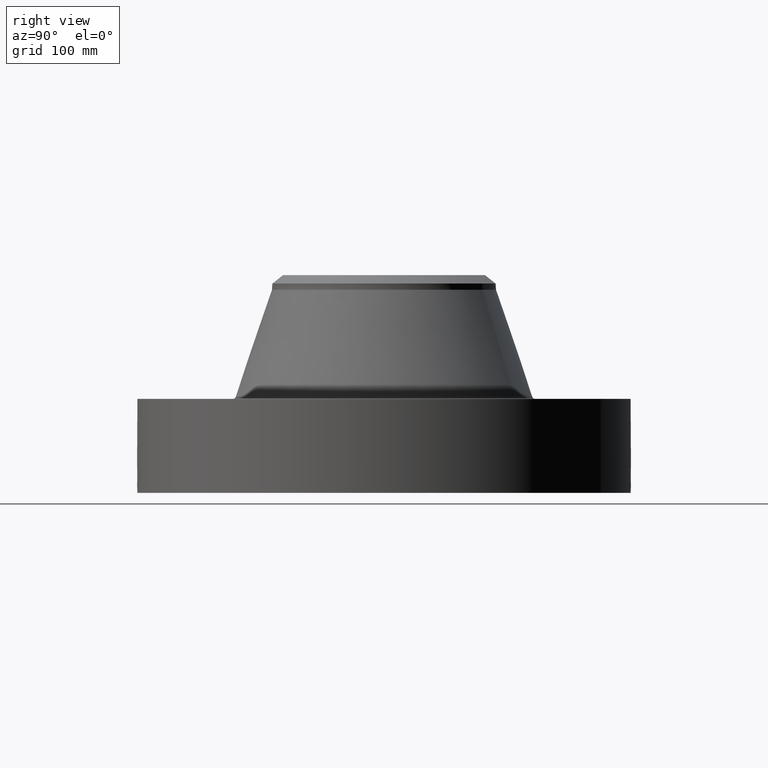
[diagram: clean part render]
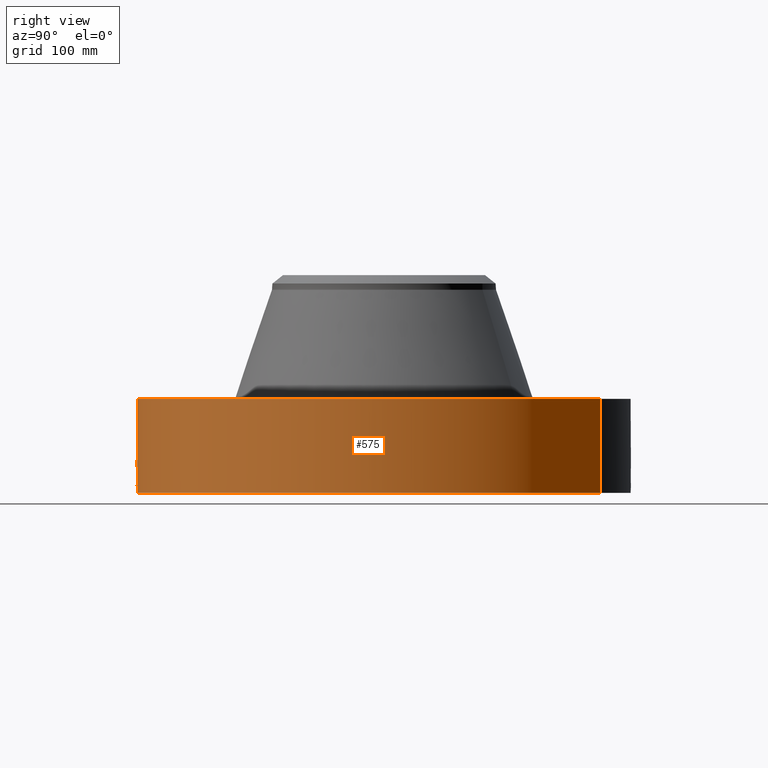
[diagram: same view with one face highlighted and labeled with its STEP entity id]
A machine part, right view. The second image highlights one B-rep face of the part: STEP entity #575.
In plain terms, the highlighted cylindrical surface (partial cylindrical patch) has radius 241.3 mm, axis along (0, 0, -1).
Its self-contained STEP definition (entity closure, byte-faithful):
#38=AXIS2_PLACEMENT_3D('Cylinder Axis2P3D',#35,#36,#37) ;
#169=AXIS2_PLACEMENT_3D('Circle Axis2P3D',#167,#168,$) ;
#479=AXIS2_PLACEMENT_3D('Circle Axis2P3D',#477,#478,$) ;
#35=CARTESIAN_POINT('Axis2P3D Location',(0.,0.,4.44000000002)) ;
#44=CARTESIAN_POINT('Vertex',(-4.55454261676,-8.33703433799,0.250000000001)) ;
#46=CARTESIAN_POINT('Vertex',(4.55454261676,8.33703433799,0.250000000001)) ;
#49=CARTESIAN_POINT('Line Origine',(-4.55454261676,-8.33703433799,2.06000000001)) ;
#53=CARTESIAN_POINT('Vertex',(-4.55454261676,-8.33703433799,3.87000000002)) ;
#60=CARTESIAN_POINT('Vertex',(4.55454261676,8.33703433799,3.87000000002)) ;
#63=CARTESIAN_POINT('Line Origine',(4.55454261676,8.33703433799,2.06000000001)) ;
#167=CARTESIAN_POINT('Axis2P3D Location',(0.,0.,0.250000000001)) ;
#477=CARTESIAN_POINT('Axis2P3D Location',(0.,0.,3.87000000002)) ;
#489=CARTESIAN_POINT('Control Point',(0.0575325675486,-9.49982578811,1.2894086259)) ;
#490=CARTESIAN_POINT('Control Point',(0.0387617029177,-9.49993946767,1.2925030616)) ;
#491=CARTESIAN_POINT('Control Point',(0.0197405343339,-9.49999853895,1.2940799501)) ;
#492=CARTESIAN_POINT('Control Point',(0.000716129650442,-9.49999997305,1.29411849914)) ;
#493=CARTESIAN_POINT('Vertex',(0.0575195611824,-9.49982611812,1.28941105279)) ;
#495=CARTESIAN_POINT('Vertex',(0.000716015010135,-9.49999997305,1.29411850959)) ;
#499=CARTESIAN_POINT('Control Point',(0.0575194650207,-9.49982586745,1.28941049641)) ;
#500=CARTESIAN_POINT('Control Point',(0.0971263632609,-9.49958605594,1.28465850568)) ;
#501=CARTESIAN_POINT('Control Point',(0.136002646621,-9.49909360353,1.27268550158)) ;
#502=CARTESIAN_POINT('Control Point',(0.171718061243,-9.49844792101,1.25435913128)) ;
#503=CARTESIAN_POINT('Vertex',(0.171718061243,-9.49844792101,1.25435913128)) ;
#507=CARTESIAN_POINT('Control Point',(0.0304002735868,-9.49995135904,0.531143633136)) ;
#508=CARTESIAN_POINT('Control Point',(0.0867716236776,-9.49977096817,0.538305394628)) ;
#509=CARTESIAN_POINT('Control Point',(0.141553163719,-9.49917753609,0.555914995272)) ;
#510=CARTESIAN_POINT('Control Point',(0.192025537177,-9.49822518869,0.583478302498)) ;
#511=CARTESIAN_POINT('Control Point',(0.265325114606,-9.49641279305,0.642895462662)) ;
#512=CARTESIAN_POINT('Control Point',(0.317440529121,-9.49472459473,0.719316163453)) ;
#513=CARTESIAN_POINT('Control Point',(0.334530416911,-9.49412332696,0.75198642609)) ;
#514=CARTESIAN_POINT('Control Point',(0.368476749451,-9.4928757749,0.84022282127)) ;
#515=CARTESIAN_POINT('Control Point',(0.375526403587,-9.49256610225,0.934455389976)) ;
#516=CARTESIAN_POINT('Control Point',(0.369385992389,-9.49282227648,0.991999991491)) ;
#517=CARTESIAN_POINT('Control Point',(0.339906533032,-9.49399493766,1.09112721561)) ;
#518=CARTESIAN_POINT('Control Point',(0.2802853053,-9.49592560805,1.17427142741)) ;
#519=CARTESIAN_POINT('Control Point',(0.248256653886,-9.496854785,1.206906435)) ;
#520=CARTESIAN_POINT('Control Point',(0.211604005711,-9.49772684141,1.23389277069)) ;
#521=CARTESIAN_POINT('Control Point',(0.171718061243,-9.49844792101,1.25435913128)) ;
#522=CARTESIAN_POINT('Vertex',(0.0304002735868,-9.49995135904,0.531143633136)) ;
#526=CARTESIAN_POINT('Control Point',(0.0304002735868,-9.49995135904,0.531143633136)) ;
#527=CARTESIAN_POINT('Control Point',(0.0202611729211,-9.49998380462,0.53086805011)) ;
#528=CARTESIAN_POINT('Control Point',(0.0101166074945,-9.50000000294,0.530945220321)) ;
#529=CARTESIAN_POINT('Control Point',(-2.72878353046E-006,-9.50000000004,0.531374667805)) ;
#530=CARTESIAN_POINT('Vertex',(-2.7287835396E-006,-9.50000000004,0.531374667805)) ;
#534=CARTESIAN_POINT('Control Point',(-0.193159967405,-9.49803607214,0.586433233683)) ;
#535=CARTESIAN_POINT('Control Point',(-0.149212423464,-9.49892982598,0.56146705998)) ;
#536=CARTESIAN_POINT('Control Point',(-0.10115845212,-9.49963677984,0.543581165944)) ;
#537=CARTESIAN_POINT('Control Point',(-0.0508206519921,-9.49999998544,0.533531295689)) ;
#538=CARTESIAN_POINT('Control Point',(-2.72878354731E-006,-9.50000000004,0.531374667805)) ;
#539=CARTESIAN_POINT('Vertex',(-0.193159967405,-9.49803607214,0.586433233683)) ;
#543=CARTESIAN_POINT('Control Point',(-0.193159967405,-9.49803607214,0.586433233683)) ;
#544=CARTESIAN_POINT('Control Point',(-0.222119006552,-9.49744713702,0.602884582391)) ;
#545=CARTESIAN_POINT('Control Point',(-0.249411383308,-9.49678168254,0.622217405796)) ;
#546=CARTESIAN_POINT('Control Point',(-0.2746322927,-9.49607319595,0.644255702053)) ;
#547=CARTESIAN_POINT('Control Point',(-0.341385873229,-9.49399594884,0.716105581251)) ;
#548=CARTESIAN_POINT('Control Point',(-0.383874883507,-9.49227878282,0.80590194253)) ;
#549=CARTESIAN_POINT('Control Point',(-0.398800769094,-9.49161188678,0.87035135955)) ;
#550=CARTESIAN_POINT('Control Point',(-0.399486240275,-9.49162271031,0.98472535134)) ;
#551=CARTESIAN_POINT('Control Point',(-0.35925407244,-9.49323070792,1.08947767762)) ;
#552=CARTESIAN_POINT('Control Point',(-0.334931992906,-9.49415713767,1.13095983017)) ;
#553=CARTESIAN_POINT('Control Point',(-0.266159836546,-9.49647544685,1.2144568112)) ;
#554=CARTESIAN_POINT('Control Point',(-0.173480293456,-9.49864536547,1.26890997347)) ;
#555=CARTESIAN_POINT('Control Point',(-0.116677432538,-9.49955881178,1.28863410109)) ;
#556=CARTESIAN_POINT('Control Point',(-0.0579003419848,-9.50000015767,1.29699293844)) ;
#557=CARTESIAN_POINT('Control Point',(2.5857935542E-005,-9.5,1.29415298432)) ;
#558=CARTESIAN_POINT('Vertex',(2.5857935536E-005,-9.5,1.29415298432)) ;
#562=CARTESIAN_POINT('Control Point',(0.000716015000061,-9.49999997305,1.29411850958)) ;
#563=CARTESIAN_POINT('Control Point',(0.00037096058774,-9.49999999906,1.29413606495)) ;
#564=CARTESIAN_POINT('Control Point',(2.58579411811E-005,-9.5,1.29415298432)) ;
#36=DIRECTION('Axis2P3D Direction',(0.,0.,-0.0393700787402)) ;
#37=DIRECTION('Axis2P3D XDirection',(0.0188750212049,0.0345504945626,0.)) ;
#50=DIRECTION('Vector Direction',(0.,0.,-0.0393700787402)) ;
#64=DIRECTION('Vector Direction',(0.,0.,-0.0393700787402)) ;
#168=DIRECTION('Axis2P3D Direction',(0.,0.,-0.0393700787402)) ;
#478=DIRECTION('Axis2P3D Direction',(0.,0.,-0.0393700787402)) ;
#51=VECTOR('Line Direction',#50,0.0393700787402) ;
#65=VECTOR('Line Direction',#64,0.0393700787402) ;
#483=ORIENTED_EDGE('',*,*,#171,.F.) ;
#484=ORIENTED_EDGE('',*,*,#67,.T.) ;
#485=ORIENTED_EDGE('',*,*,#481,.T.) ;
#486=ORIENTED_EDGE('',*,*,#55,.F.) ;
#567=ORIENTED_EDGE('',*,*,#497,.F.) ;
#568=ORIENTED_EDGE('',*,*,#505,.T.) ;
#569=ORIENTED_EDGE('',*,*,#524,.F.) ;
#570=ORIENTED_EDGE('',*,*,#532,.T.) ;
#571=ORIENTED_EDGE('',*,*,#541,.F.) ;
#572=ORIENTED_EDGE('',*,*,#560,.T.) ;
#573=ORIENTED_EDGE('',*,*,#565,.F.) ;
#574=FACE_BOUND('',#566,.T.) ;
#575=ADVANCED_FACE('PartBody',(#487,#574),#39,.T.) ;
#488=B_SPLINE_CURVE_WITH_KNOTS('',3,(#489,#490,#491,#492),.UNSPECIFIED.,.F.,.U.,(4,4),(4.41073259351,6.5213174224),.UNSPECIFIED.) ;
#498=B_SPLINE_CURVE_WITH_KNOTS('',3,(#499,#500,#501,#502),.UNSPECIFIED.,.F.,.U.,(4,4),(0.,4.48220722227),.UNSPECIFIED.) ;
#506=B_SPLINE_CURVE_WITH_KNOTS('',5,(#507,#508,#509,#510,#511,#512,#513,#514,#515,#516,#517,#518,#519,#520,#521),.UNSPECIFIED.,.F.,.U.,(6,3,3,3,6),(0.,9.87570584179,16.4487421167,26.845713168,35.1883792386),.UNSPECIFIED.) ;
#525=B_SPLINE_CURVE_WITH_KNOTS('',3,(#526,#527,#528,#529),.UNSPECIFIED.,.F.,.U.,(4,4),(0.,1.05758898706),.UNSPECIFIED.) ;
#533=B_SPLINE_CURVE_WITH_KNOTS('',4,(#534,#535,#536,#537,#538),.UNSPECIFIED.,.F.,.U.,(5,5),(0.,7.08142306902),.UNSPECIFIED.) ;
#542=B_SPLINE_CURVE_WITH_KNOTS('',5,(#543,#544,#545,#546,#547,#548,#549,#550,#551,#552,#553,#554,#555,#556,#557),.UNSPECIFIED.,.F.,.U.,(6,3,3,3,6),(0.,5.83284033851,17.1177406254,25.5997495942,36.4273577529),.UNSPECIFIED.) ;
#561=B_SPLINE_CURVE_WITH_KNOTS('',2,(#562,#563,#564),.UNSPECIFIED.,.F.,.U.,(3,3),(1.04159308309,1.06739582116),.UNSPECIFIED.) ;
#170=CIRCLE('generated circle',#169,9.50000000004) ;
#480=CIRCLE('generated circle',#479,9.50000000004) ;
#39=CYLINDRICAL_SURFACE('generated cylinder',#38,9.50000000004) ;
#55=EDGE_CURVE('',#45,#54,#52,.F.) ;
#67=EDGE_CURVE('',#47,#61,#66,.F.) ;
#171=EDGE_CURVE('',#47,#45,#170,.T.) ;
#481=EDGE_CURVE('',#61,#54,#480,.T.) ;
#497=EDGE_CURVE('',#494,#496,#488,.T.) ;
#505=EDGE_CURVE('',#494,#504,#498,.T.) ;
#524=EDGE_CURVE('',#523,#504,#506,.T.) ;
#532=EDGE_CURVE('',#523,#531,#525,.T.) ;
#541=EDGE_CURVE('',#540,#531,#533,.T.) ;
#560=EDGE_CURVE('',#540,#559,#542,.T.) ;
#565=EDGE_CURVE('',#496,#559,#561,.T.) ;
#482=EDGE_LOOP('',(#483,#484,#485,#486)) ;
#566=EDGE_LOOP('',(#567,#568,#569,#570,#571,#572,#573)) ;
#487=FACE_OUTER_BOUND('',#482,.T.) ;
#52=LINE('Line',#49,#51) ;
#66=LINE('Line',#63,#65) ;
#45=VERTEX_POINT('',#44) ;
#47=VERTEX_POINT('',#46) ;
#54=VERTEX_POINT('',#53) ;
#61=VERTEX_POINT('',#60) ;
#494=VERTEX_POINT('',#493) ;
#496=VERTEX_POINT('',#495) ;
#504=VERTEX_POINT('',#503) ;
#523=VERTEX_POINT('',#522) ;
#531=VERTEX_POINT('',#530) ;
#540=VERTEX_POINT('',#539) ;
#559=VERTEX_POINT('',#558) ;